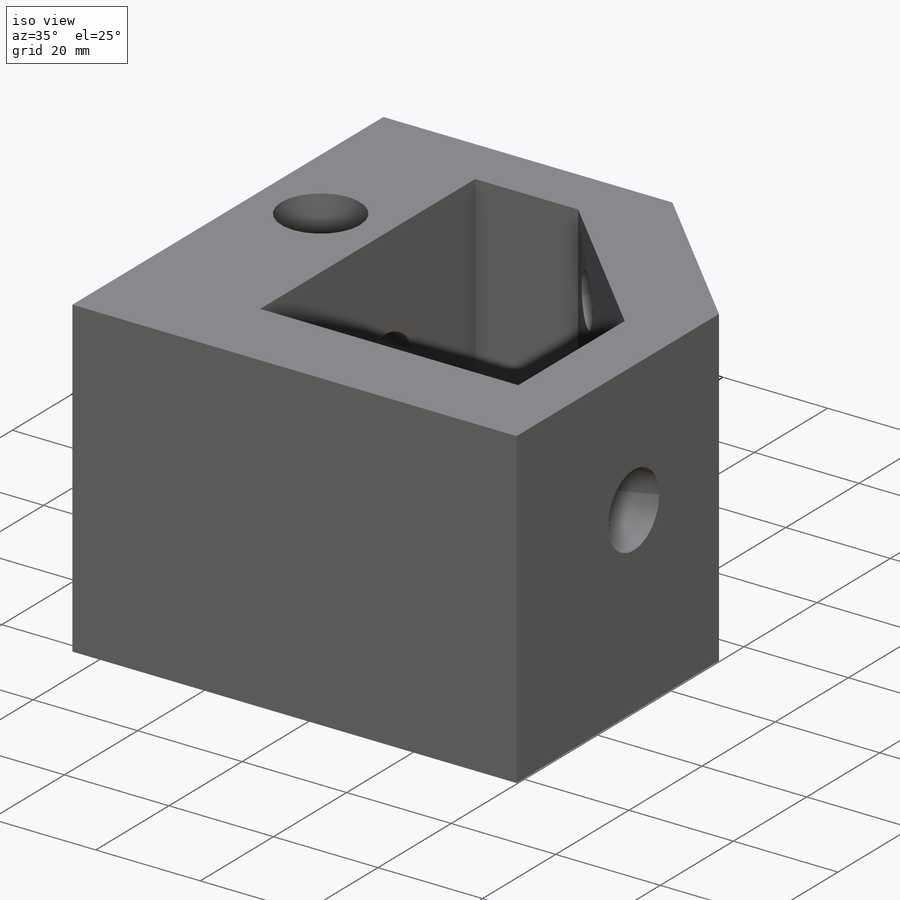
[diagram: iso view]
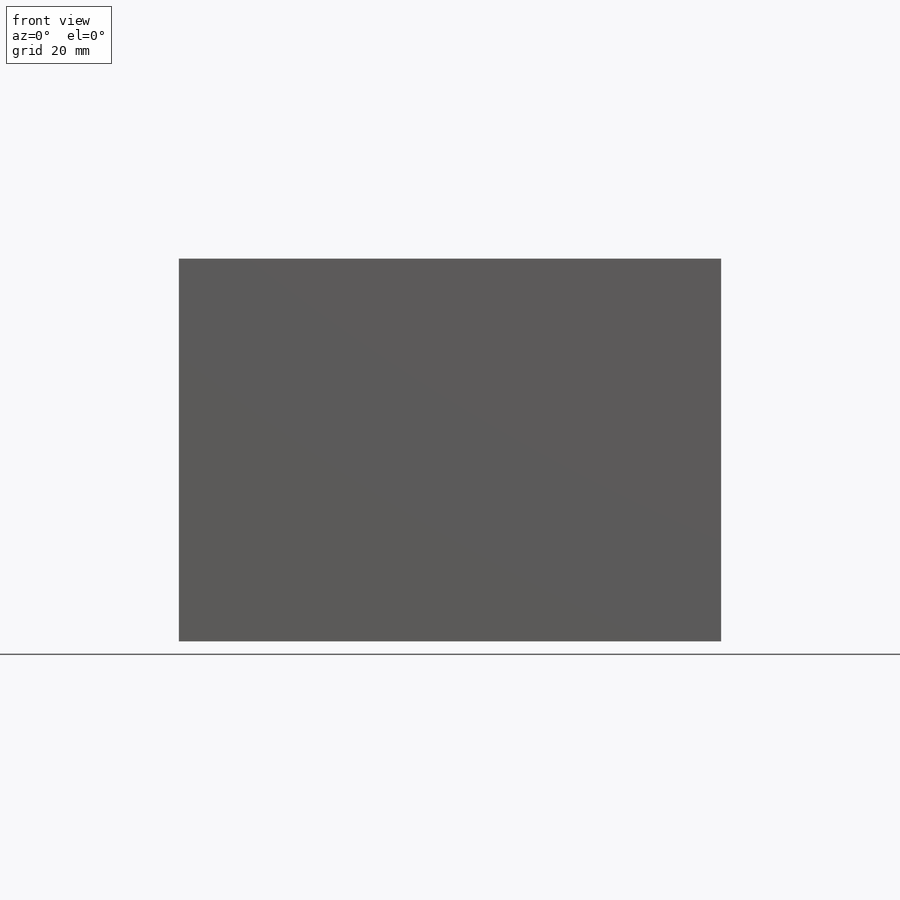
[diagram: front view]
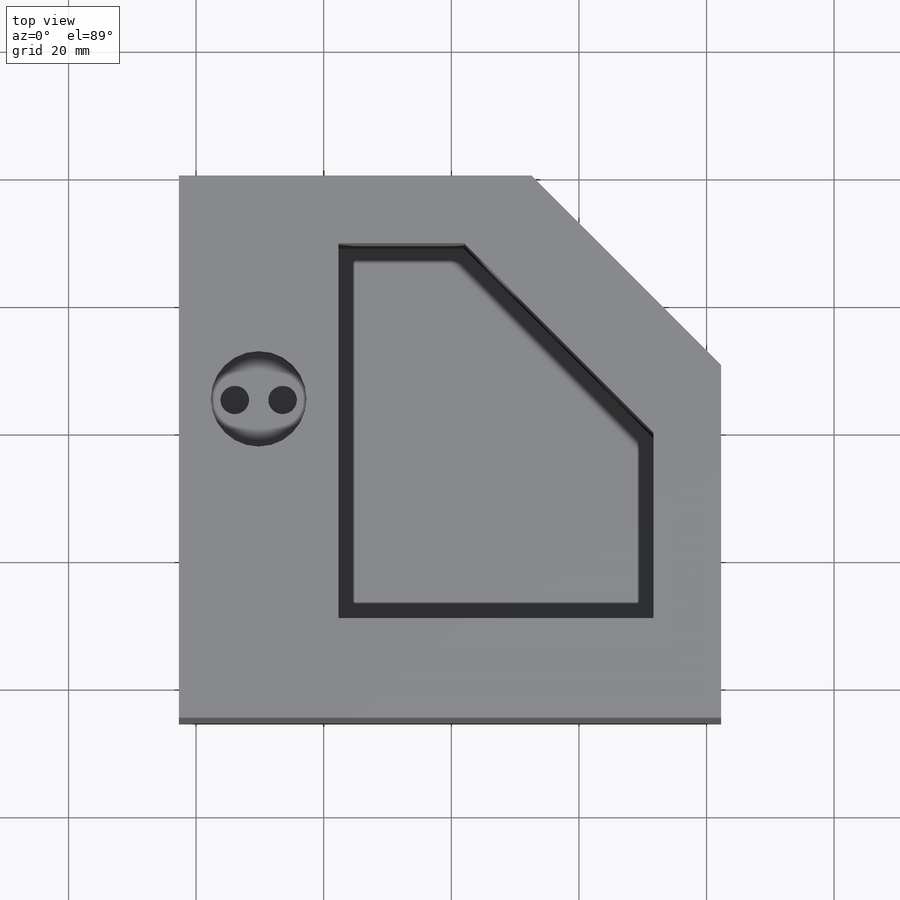
[diagram: top view]
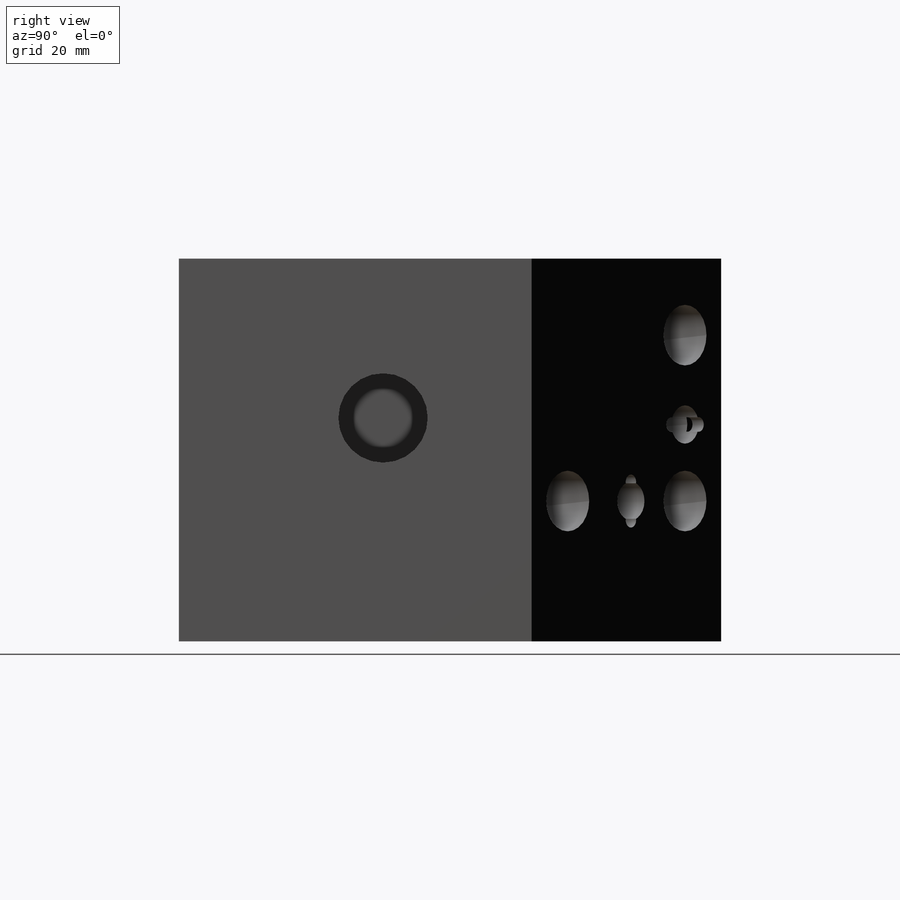
[diagram: right view]
SOLIDWORKS PART (.sldprt)
format: sldprt  version: not decoded by parser v0  size: 512,000 bytes
history: native  units: mm
features: sketch x13, cut_extrude x10, extrude x3, material x1 (+11 scaffold rows collapsed)
feature tree (38):
  scaffold x11  (default folders/planes/origin — collapsed)
  material  "Material <not specified>"
  sketch  "Sketch1"  dims[c1.D1=80.0mm c1.D2=85.0mm c1.D3=42.0mm c1.D4=~23.478359mm c2.D4=135.0deg c2.D5=25.0mm c2.D6=5.0mm c2.D7=5.0mm c2.D8=5.0mm c2.D9=45.0mm c3.D9=360.0deg c3.D10=~5.010755mm c3.D7=15.0mm c3.D8=42.0mm c3.D6=10.0mm c4.D9=10.0mm c4.D10=~11.213203mm c4.D6=60.0mm c5.D9=50.0mm c5.D10=~11.213203mm c5.D6=10.61mm c6.D9=10.61mm c6.D10=~19.698312mm]
  extrude  "Boss-Extrude2"  Depth=60mm
  sketch  "Sketch4"
  extrude  "Boss-Extrude3"  Depth=10mm
  sketch  "Sketch8"  dims[c1.D3=9.5mm c1.D5=9.5mm c1.D6=5.75mm c1.D7=9.5mm c1.D10=~12.232118mm c1.D11=6.0mm c1.D12=6.0mm c1.D15=6.0mm c1.D16=5.75mm c1.D18=6.0mm c1.D1=38.0mm c1.D2=38.0mm c2.D3=~21.695329mm c2.D4=6.0mm c2.D6=6.13mm c2.D8=6.0mm c2.D9=6.0mm c2.D10=6.0mm c2.D13=6.0mm c2.D14=18.0mm c2.D15=6.0mm c2.D16=6.0mm c2.D17=6.0mm c2.D18=18.0mm c2.D19=6.0mm c2.D20=2.0mm c2.D21=~15.279866mm c2.D22=22.0mm c2.D23=22.0mm c3.D22=~41.698542mm c3.D21=~15.279866mm c3.D6=6.0mm]
  cut_extrude  "Cut-Extrude2"  [1 undecoded]
  sketch  "Sketch9"  dims[c1.D3=15.0mm c1.D1=35.0mm c1.D2=~27.669578mm c2.D2=90.0deg c3.D2=25.0mm]
  cut_extrude  "Cut-Extrude3"  [1 undecoded]
  sketch  "Sketch10"  dims[c1.D2=~9.897574mm c1.D3=14.0mm c1.D1=25.0mm c2.D2=~28.002969mm c3.D2=90.0deg c4.D2=27.0mm]
  cut_extrude  "Cut-Extrude4"  [1 undecoded]
  sketch  "Sketch12"  dims[c1.D2=~12.465425mm c1.D3=15.0mm c1.D1=35.0mm c2.D2=~35.057568mm c3.D2=90.0deg c4.D2=12.5mm]
  cut_extrude  "Cut-Extrude6"  Depth=10mm
  sketch  "Sketch24"  dims[D1=4.5mm D2=4.5mm]
  cut_extrude  "Cut-Extrude16"  [1 undecoded]
  sketch  "Sketch33"  dims[c1.D1=3.0mm c1.D2=3.0mm c1.D3=3.0mm c1.D5=13.0mm c1.D6=3.0mm c2.D2=10.0mm c2.D3=3.0mm c2.D4=6.0mm c2.D5=10.0mm]
  cut_extrude  "Cut-Extrude18"  Depth=10mm
  sketch  "Sketch37"
  extrude  "Boss-Extrude7"  Depth=5mm
  sketch  "Sketch38"  dims[c1.D1=4.0mm c1.D2=5.0mm c1.D3=5.0mm c1.D4=4.0mm c1.D5=5.0mm c1.D6=5.0mm c1.D7=4.0mm c1.D8=4.0mm c1.D9=4.0mm c1.D10=4.0mm c1.D11=5.0mm c1.D12=5.0mm c2.D5=5.0mm c2.D6=5.0mm c2.D7=2.75mm c2.D8=2.75mm c2.D9=20.0mm c2.D10=20.0mm c2.D11=20.0mm c2.D12=20.0mm]
  cut_extrude  "Cut-Extrude19"  Depth=20mm
  sketch  "Sketch39"  dims[c1.D1=5.0mm c1.D2=5.0mm c1.D3=5.0mm c2.D2=15.0mm c2.D3=25.0mm]
  cut_extrude  "Cut-Extrude20"  [1 undecoded]
  sketch  "Sketch40"  dims[c1.D1=4.0mm c1.D2=4.0mm c1.D3=4.0mm c1.D4=4.0mm c1.D5=4.0mm c1.D6=4.0mm c1.D7=4.0mm c1.D8=4.0mm c1.D9=4.0mm c1.D10=4.0mm c1.D11=4.0mm c1.D12=4.0mm c1.D13=4.0mm c1.D14=4.0mm c1.D15=4.0mm c2.D6=6.0mm c2.D7=6.0mm c2.D8=6.0mm c2.D9=6.0mm c2.D10=6.0mm c2.D11=6.0mm c2.D12=6.0mm c2.D13=6.0mm c2.D14=6.0mm c2.D15=6.0mm]
  cut_extrude  "Cut-Extrude21"  Depth=10mm
  sketch  "Sketch41"  dims[D1=2.3mm D2=2.3mm D3=2.3mm D4=2.3mm]
  cut_extrude  "Cut-Extrude22"  Depth=2.5mm
decode coverage: 19 of 26 modeling features carry decoded parameters
note: ~ marks probable driven/reference dimensions
note: 5 parameter values undecoded
summary: no parameter record found for 5 features
note: suppression state not decoded; provenance and decode notes live in map.json
